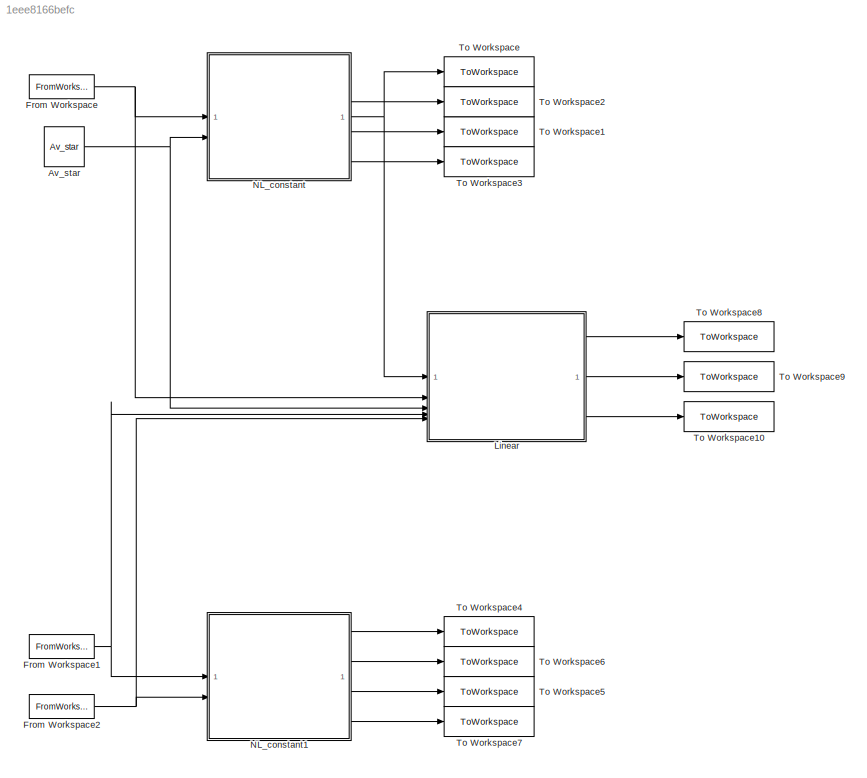
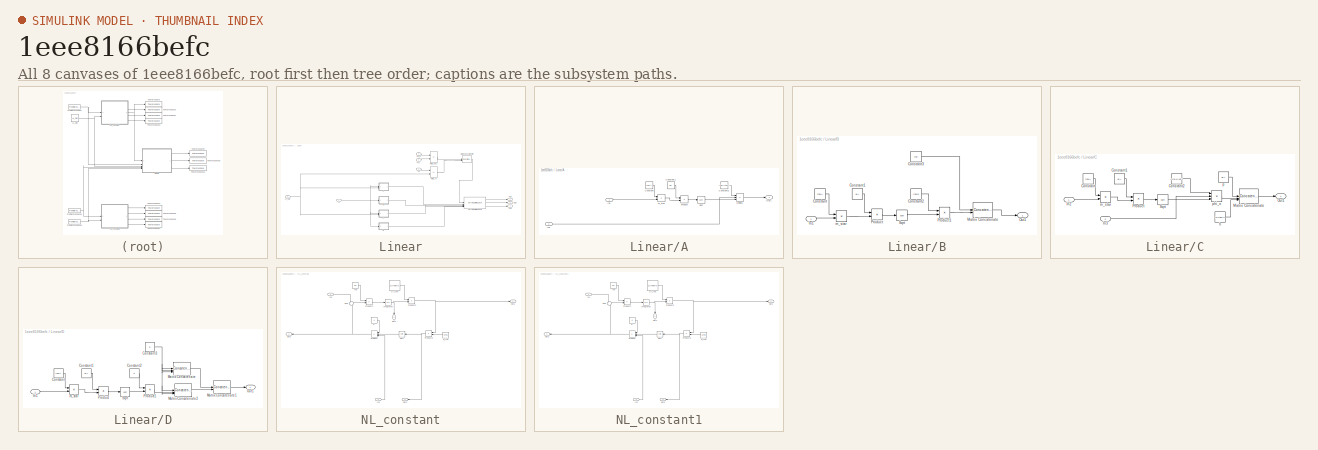
[diagram: thumbnail index - all 8 canvases of the model, root first then tree order]
MODEL slx_1eee8166befc
KIND model
CONFIG AbsTol = auto
CONFIG EnableMultiTasking = off
CONFIG FixedStep = 1
CONFIG MaxStep = auto
CONFIG MinStep = auto
CONFIG RelTol = 1e-3
CONFIG SampleTimeConstraint = Unconstrained
CONFIG SolverName = FixedStepAuto
CONFIG StartTime = 0.0
CONFIG StopTime = 20000
WORKSPACE source: mxarray member
WORKSPACE rho = 980
BLOCK [Constant] Av_star
  Value = Av_star
BLOCK [FromWorkspace] From Workspace
  OutDataTypeStr = double
  VariableName = phi_i
BLOCK [FromWorkspace] From Workspace1
  VariableName = phi_i
BLOCK [FromWorkspace] From Workspace2
  VariableName = Av
BLOCK [SubSystem] Linear
BLOCK [SubSystem] Linear/A
BLOCK [Constant] Linear/A/Constant
  Value = rho*A
BLOCK [Constant] Linear/A/Constant1
  Value = g/A
BLOCK [Constant] Linear/A/Constant2
  Value = -(1/2)*rho*K*g/A
BLOCK [Product] Linear/A/Divide1
  Inputs = **/
BLOCK [Inport] Linear/A/In1
BLOCK [Inport] Linear/A/In2
  Port = 2
BLOCK [Outport] Linear/A/Out1
BLOCK [Product] Linear/A/Product
BLOCK [Sqrt] Linear/A/Sqrt
BLOCK [Product] Linear/A/m_star
BLOCK [Inport] Linear/Av
  Port = 5
BLOCK [Inport] Linear/Av_star
  Port = 3
BLOCK [SubSystem] Linear/B
BLOCK [Constant] Linear/B/Constant
  Value = rho*A
BLOCK [Constant] Linear/B/Constant1
  Value = g/A
BLOCK [Constant] Linear/B/Constant2
  Value = -rho*K
BLOCK [Constant] Linear/B/Constant3
  Value = rho
BLOCK [Inport] Linear/B/In1
BLOCK [Concatenate] Linear/B/Matrix Concatenate
  ConcatenateDimension = 2
  Mode = Multidimensional array
BLOCK [Outport] Linear/B/Out1
BLOCK [Product] Linear/B/Product
BLOCK [Product] Linear/B/Product1
BLOCK [Sqrt] Linear/B/Sqrt
BLOCK [Product] Linear/B/m_star
BLOCK [SubSystem] Linear/C
BLOCK [Constant] Linear/C/Constant
  Value = rho*A
BLOCK [Constant] Linear/C/Constant1
  Value = g/A
BLOCK [Constant] Linear/C/Constant2
  Value = (1/2)*K*g/A
BLOCK [Inport] Linear/C/In2
BLOCK [Inport] Linear/C/In3
  Port = 2
BLOCK [Concatenate] Linear/C/Matrix Concatenate
  Mode = Multidimensional array
  NumInputs = 3
BLOCK [Outport] Linear/C/Out1
BLOCK [Product] Linear/C/Product
BLOCK [Sqrt] Linear/C/Sqrt
BLOCK [Constant] Linear/C/h
  Value = 1/(rho*A)
BLOCK [Product] Linear/C/m_star
BLOCK [Constant] Linear/C/p
  Value = g/A
BLOCK [Product] Linear/C/phi_o
  Inputs = **/
BLOCK [SubSystem] Linear/D
BLOCK [Constant] Linear/D/Constant
  Value = rho*A
BLOCK [Constant] Linear/D/Constant1
  Value = g/A
BLOCK [Constant] Linear/D/Constant2
  Value = K
BLOCK [Constant] Linear/D/Constant3
  Value = 0
BLOCK [Inport] Linear/D/In1
BLOCK [Concatenate] Linear/D/Matrix Concatenate
  Mode = Multidimensional array
  NumInputs = 3
BLOCK [Concatenate] Linear/D/Matrix Concatenate1
  ConcatenateDimension = 2
  Mode = Multidimensional array
BLOCK [Concatenate] Linear/D/Matrix Concatenate2
  Mode = Multidimensional array
  NumInputs = 3
BLOCK [Outport] Linear/D/Out1
BLOCK [Product] Linear/D/Product
BLOCK [Product] Linear/D/Product1
BLOCK [Sqrt] Linear/D/Sqrt
BLOCK [Product] Linear/D/m_star
BLOCK [Concatenate] Linear/Matrix Concatenate
  Mode = Multidimensional array
BLOCK [Outport] Linear/Out1
BLOCK [Outport] Linear/Out2
  Port = 2
BLOCK [Outport] Linear/Out3
  Port = 3
BLOCK [Reference] Linear/Varying State Space  REF=cstblocks/Linear Parameter Varying/Varying State Space
  SourceBlock = cstblocks/Linear Parameter Varying/Varying State Space
  SourceType = Varying State Space
BLOCK [Sum] Linear/delta_Av
  IconShape = rectangular
  Inputs = +-
BLOCK [Sum] Linear/delta_phi_i
  IconShape = rectangular
  Inputs = +-
BLOCK [Inport] Linear/h
BLOCK [Inport] Linear/phi_i
  Port = 2
BLOCK [Inport] Linear/phi_i1
  Port = 4
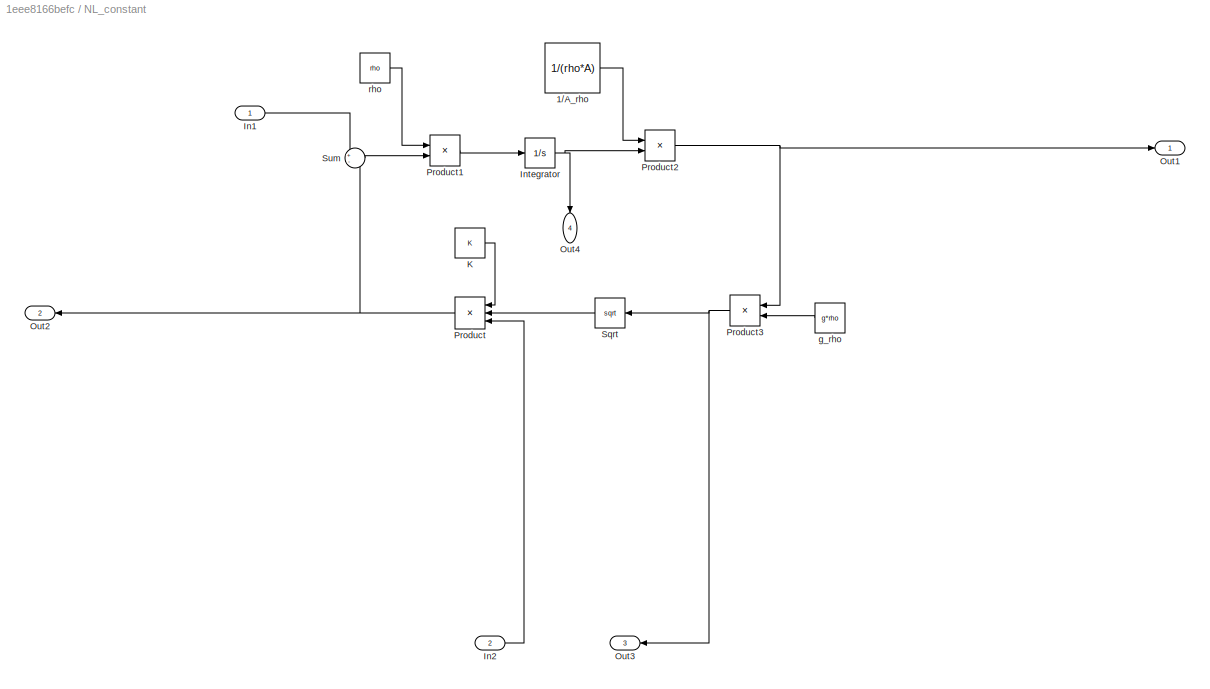
BLOCK [SubSystem] NL_constant
BLOCK [Constant] NL_constant/1//A_rho
  Value = 1/(rho*A)
BLOCK [Inport] NL_constant/In1
BLOCK [Inport] NL_constant/In2
  Port = 2
BLOCK [Integrator] NL_constant/Integrator
  InitialCondition = A/g*(phi_o_star/(K*Av_star))^2
BLOCK [Constant] NL_constant/K
  Value = K
BLOCK [Outport] NL_constant/Out1
BLOCK [Outport] NL_constant/Out2
  Port = 2
BLOCK [Outport] NL_constant/Out3
  Port = 3
BLOCK [Outport] NL_constant/Out4
  NameLocation = left
  Port = 4
BLOCK [Product] NL_constant/Product
  Inputs = 3
BLOCK [Product] NL_constant/Product1
BLOCK [Product] NL_constant/Product2
BLOCK [Product] NL_constant/Product3
BLOCK [Sqrt] NL_constant/Sqrt
BLOCK [Sum] NL_constant/Sum
  Inputs = +-
BLOCK [Constant] NL_constant/g_rho
  Value = g*rho
BLOCK [Constant] NL_constant/rho
  Value = rho
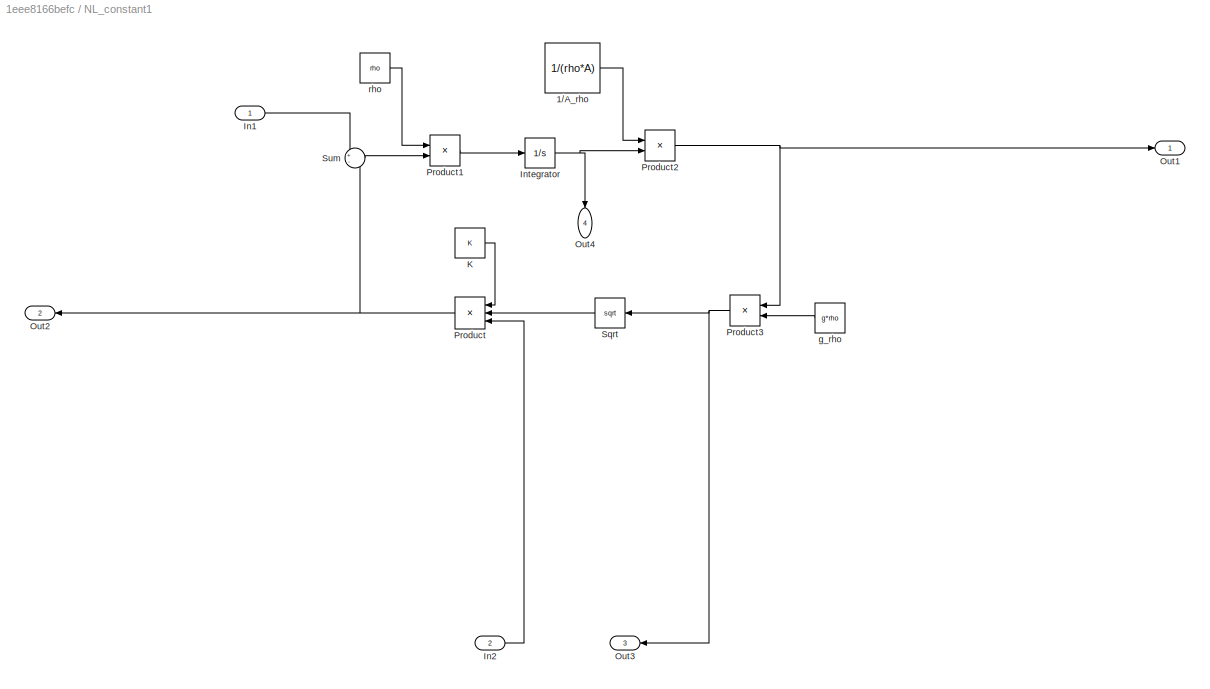
BLOCK [SubSystem] NL_constant1
BLOCK [Constant] NL_constant1/1//A_rho
  Value = 1/(rho*A)
BLOCK [Inport] NL_constant1/In1
BLOCK [Inport] NL_constant1/In2
  Port = 2
BLOCK [Integrator] NL_constant1/Integrator
  InitialCondition = A/g*(phi_o_star/(K*Av_star))^2
BLOCK [Constant] NL_constant1/K
  Value = K
BLOCK [Outport] NL_constant1/Out1
BLOCK [Outport] NL_constant1/Out2
  Port = 2
BLOCK [Outport] NL_constant1/Out3
  Port = 3
BLOCK [Outport] NL_constant1/Out4
  NameLocation = left
  Port = 4
BLOCK [Product] NL_constant1/Product
  Inputs = 3
BLOCK [Product] NL_constant1/Product1
BLOCK [Product] NL_constant1/Product2
BLOCK [Product] NL_constant1/Product3
BLOCK [Sqrt] NL_constant1/Sqrt
BLOCK [Sum] NL_constant1/Sum
  Inputs = +-
BLOCK [Constant] NL_constant1/g_rho
  Value = g*rho
BLOCK [Constant] NL_constant1/rho
  Value = rho
BLOCK [ToWorkspace] To Workspace
  FixptAsFi = on
  MaxDataPoints = inf
  SampleTime = -1
  SaveFormat = Timeseries
  VariableName = h
BLOCK [ToWorkspace] To Workspace1
  FixptAsFi = on
  MaxDataPoints = inf
  SampleTime = -1
  SaveFormat = Timeseries
  VariableName = p
BLOCK [ToWorkspace] To Workspace10
  FixptAsFi = on
  MaxDataPoints = inf
  SampleTime = -1
  SaveFormat = Timeseries
  VariableName = dx
BLOCK [ToWorkspace] To Workspace2
  FixptAsFi = on
  MaxDataPoints = inf
  SampleTime = -1
  SaveFormat = Timeseries
  VariableName = phi_o
BLOCK [ToWorkspace] To Workspace3
  FixptAsFi = on
  MaxDataPoints = inf
  SampleTime = -1
  SaveFormat = Timeseries
  VariableName = m
BLOCK [ToWorkspace] To Workspace4
  FixptAsFi = on
  MaxDataPoints = inf
  SampleTime = -1
  SaveFormat = Timeseries
  VariableName = h1
BLOCK [ToWorkspace] To Workspace5
  FixptAsFi = on
  MaxDataPoints = inf
  SampleTime = -1
  SaveFormat = Timeseries
  VariableName = p1
BLOCK [ToWorkspace] To Workspace6
  FixptAsFi = on
  MaxDataPoints = inf
  SampleTime = -1
  SaveFormat = Timeseries
  VariableName = phi_o1
BLOCK [ToWorkspace] To Workspace7
  FixptAsFi = on
  MaxDataPoints = inf
  SampleTime = -1
  SaveFormat = Timeseries
  VariableName = m1
BLOCK [ToWorkspace] To Workspace8
  FixptAsFi = on
  MaxDataPoints = inf
  SampleTime = -1
  SaveFormat = Timeseries
  VariableName = y
BLOCK [ToWorkspace] To Workspace9
  FixptAsFi = on
  MaxDataPoints = inf
  SampleTime = -1
  SaveFormat = Timeseries
  VariableName = x
NET Av_star:1 -> Linear:3, NL_constant:2
NET From Workspace1:1 -> Linear:4, NL_constant1:1
NET From Workspace2:1 -> Linear:5, NL_constant1:2
NET From Workspace:1 -> Linear:2, NL_constant:1
LINE Linear/A/Constant1:1 -> Linear/A/Product:1
LINE Linear/A/Constant2:1 -> Linear/A/Divide1:1
LINE Linear/A/Constant:1 -> Linear/A/m_star:1
LINE Linear/A/Divide1:1 -> Linear/A/Out1:1
LINE Linear/A/In1:1 -> Linear/A/m_star:2
LINE Linear/A/In2:1 -> Linear/A/Divide1:2
LINE Linear/A/Product:1 -> Linear/A/Sqrt:1
LINE Linear/A/Sqrt:1 -> Linear/A/Divide1:3
LINE Linear/A/m_star:1 -> Linear/A/Product:2
LINE Linear/A:1 -> Linear/Varying State Space:2
LINE Linear/Av:1 -> Linear/delta_Av:1
NET Linear/Av_star:1 -> Linear/A:2, Linear/C:2, Linear/delta_Av:2
LINE Linear/B/Constant1:1 -> Linear/B/Product:1
LINE Linear/B/Constant2:1 -> Linear/B/Product1:1
LINE Linear/B/Constant3:1 -> Linear/B/Matrix Concatenate:1
LINE Linear/B/Constant:1 -> Linear/B/m_star:1
LINE Linear/B/In1:1 -> Linear/B/m_star:2
LINE Linear/B/Matrix Concatenate:1 -> Linear/B/Out1:1
LINE Linear/B/Product1:1 -> Linear/B/Matrix Concatenate:2
LINE Linear/B/Product:1 -> Linear/B/Sqrt:1
LINE Linear/B/Sqrt:1 -> Linear/B/Product1:2
LINE Linear/B/m_star:1 -> Linear/B/Product:2
LINE Linear/B:1 -> Linear/Varying State Space:3
LINE Linear/C/Constant1:1 -> Linear/C/Product:1
LINE Linear/C/Constant2:1 -> Linear/C/phi_o:1
LINE Linear/C/Constant:1 -> Linear/C/m_star:1
LINE Linear/C/In2:1 -> Linear/C/m_star:2
LINE Linear/C/In3:1 -> Linear/C/phi_o:2
LINE Linear/C/Matrix Concatenate:1 -> Linear/C/Out1:1
LINE Linear/C/Product:1 -> Linear/C/Sqrt:1
LINE Linear/C/Sqrt:1 -> Linear/C/phi_o:3
LINE Linear/C/h:1 -> Linear/C/Matrix Concatenate:3
LINE Linear/C/m_star:1 -> Linear/C/Product:2
LINE Linear/C/p:1 -> Linear/C/Matrix Concatenate:1
LINE Linear/C/phi_o:1 -> Linear/C/Matrix Concatenate:2
LINE Linear/C:1 -> Linear/Varying State Space:4
LINE Linear/D/Constant1:1 -> Linear/D/Product:1
LINE Linear/D/Constant2:1 -> Linear/D/Product1:1
NET Linear/D/Constant3:1 -> Linear/D/Matrix Concatenate2:1, Linear/D/Matrix Concatenate2:3, Linear/D/Matrix Concatenate:1, Linear/D/Matrix Concatenate:2, Linear/D/Matrix Concatenate:3
LINE Linear/D/Constant:1 -> Linear/D/m_star:1
LINE Linear/D/In1:1 -> Linear/D/m_star:2
LINE Linear/D/Matrix Concatenate1:1 -> Linear/D/Out1:1
LINE Linear/D/Matrix Concatenate2:1 -> Linear/D/Matrix Concatenate1:2
LINE Linear/D/Matrix Concatenate:1 -> Linear/D/Matrix Concatenate1:1
LINE Linear/D/Product1:1 -> Linear/D/Matrix Concatenate2:2
LINE Linear/D/Product:1 -> Linear/D/Sqrt:1
LINE Linear/D/Sqrt:1 -> Linear/D/Product1:2
LINE Linear/D/m_star:1 -> Linear/D/Product:2
LINE Linear/D:1 -> Linear/Varying State Space:5
LINE Linear/Matrix Concatenate:1 -> Linear/Varying State Space:1
LINE Linear/Varying State Space:1 -> Linear/Out1:1
LINE Linear/Varying State Space:2 -> Linear/Out2:1
LINE Linear/Varying State Space:3 -> Linear/Out3:1
LINE Linear/delta_Av:1 -> Linear/Matrix Concatenate:2
LINE Linear/delta_phi_i:1 -> Linear/Matrix Concatenate:1
NET Linear/h:1 -> Linear/A:1, Linear/B:1, Linear/C:1, Linear/D:1
LINE Linear/phi_i1:1 -> Linear/delta_phi_i:1
LINE Linear/phi_i:1 -> Linear/delta_phi_i:2
LINE Linear:1 -> To Workspace8:1
LINE Linear:2 -> To Workspace9:1
LINE Linear:3 -> To Workspace10:1
LINE NL_constant/1//A_rho:1 -> NL_constant/Product2:1
LINE NL_constant/In1:1 -> NL_constant/Sum:1
LINE NL_constant/In2:1 -> NL_constant/Product:3
NET NL_constant/Integrator:1 -> NL_constant/Out4:1, NL_constant/Product2:2
LINE NL_constant/K:1 -> NL_constant/Product:1
LINE NL_constant/Product1:1 -> NL_constant/Integrator:1
NET NL_constant/Product2:1 -> NL_constant/Out1:1, NL_constant/Product3:1
NET NL_constant/Product3:1 -> NL_constant/Out3:1, NL_constant/Sqrt:1
NET NL_constant/Product:1 -> NL_constant/Out2:1, NL_constant/Sum:2
LINE NL_constant/Sqrt:1 -> NL_constant/Product:2
LINE NL_constant/Sum:1 -> NL_constant/Product1:2
LINE NL_constant/g_rho:1 -> NL_constant/Product3:2
LINE NL_constant/rho:1 -> NL_constant/Product1:1
LINE NL_constant1/1//A_rho:1 -> NL_constant1/Product2:1
LINE NL_constant1/In1:1 -> NL_constant1/Sum:1
LINE NL_constant1/In2:1 -> NL_constant1/Product:3
NET NL_constant1/Integrator:1 -> NL_constant1/Out4:1, NL_constant1/Product2:2
LINE NL_constant1/K:1 -> NL_constant1/Product:1
LINE NL_constant1/Product1:1 -> NL_constant1/Integrator:1
NET NL_constant1/Product2:1 -> NL_constant1/Out1:1, NL_constant1/Product3:1
NET NL_constant1/Product3:1 -> NL_constant1/Out3:1, NL_constant1/Sqrt:1
NET NL_constant1/Product:1 -> NL_constant1/Out2:1, NL_constant1/Sum:2
LINE NL_constant1/Sqrt:1 -> NL_constant1/Product:2
LINE NL_constant1/Sum:1 -> NL_constant1/Product1:2
LINE NL_constant1/g_rho:1 -> NL_constant1/Product3:2
LINE NL_constant1/rho:1 -> NL_constant1/Product1:1
LINE NL_constant1:1 -> To Workspace4:1
LINE NL_constant1:2 -> To Workspace6:1
LINE NL_constant1:3 -> To Workspace5:1
LINE NL_constant1:4 -> To Workspace7:1
NET NL_constant:1 -> Linear:1, To Workspace:1
LINE NL_constant:2 -> To Workspace2:1
LINE NL_constant:3 -> To Workspace1:1
LINE NL_constant:4 -> To Workspace3:1
note: NET lines group one-source signal fan-out (src -> all destinations, sorted); 1:1 wires keep LINE
